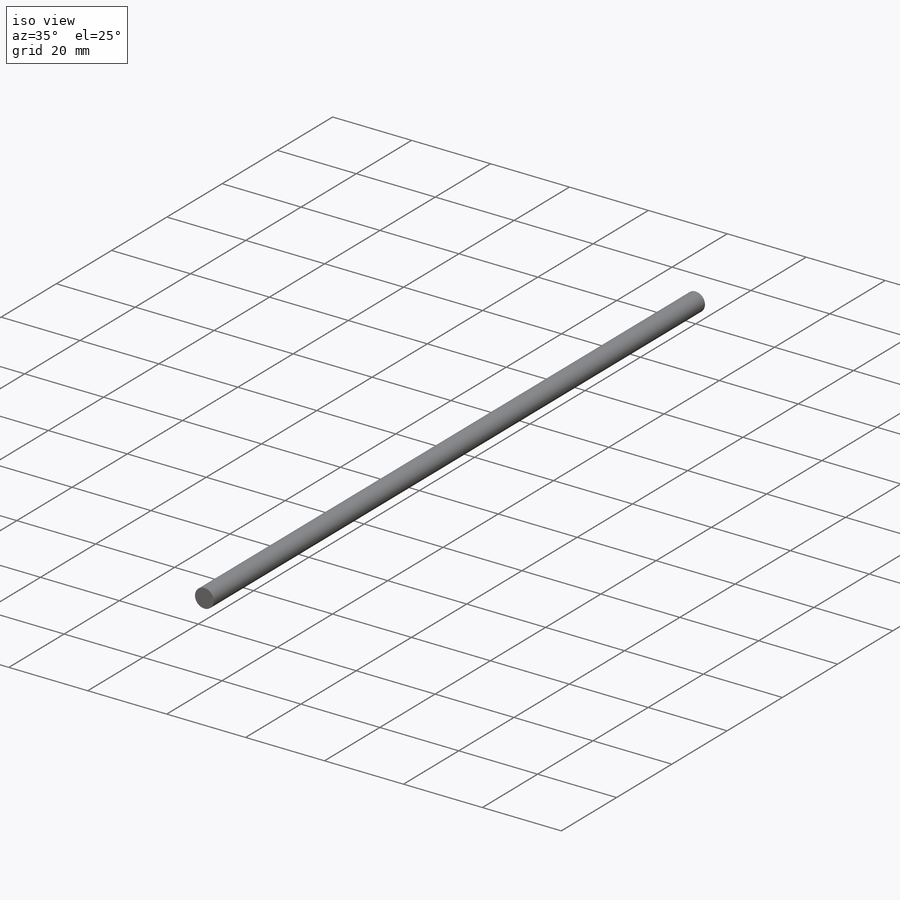
[diagram: iso view]
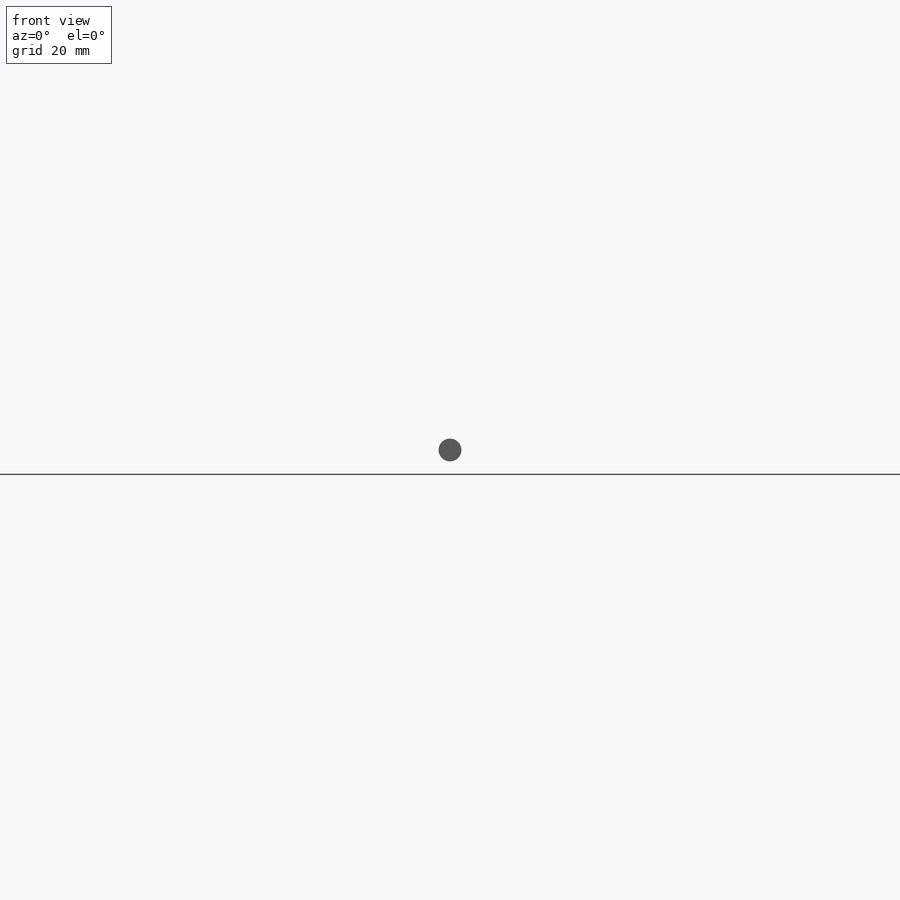
[diagram: front view]
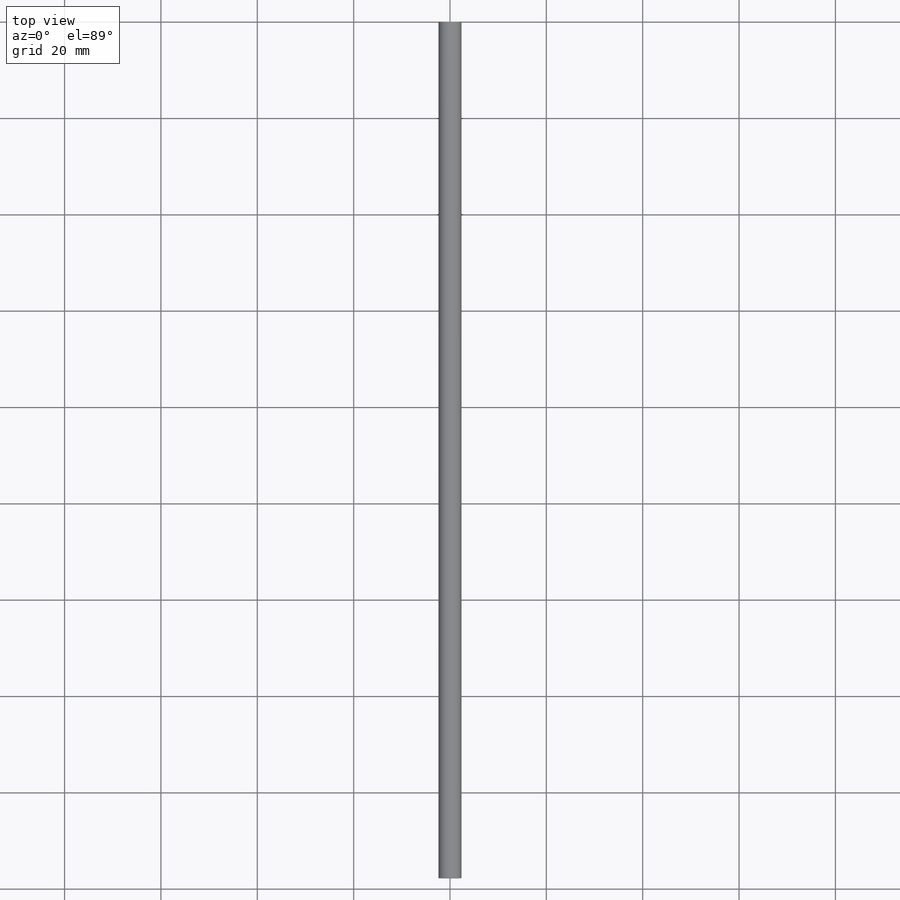
[diagram: top view]
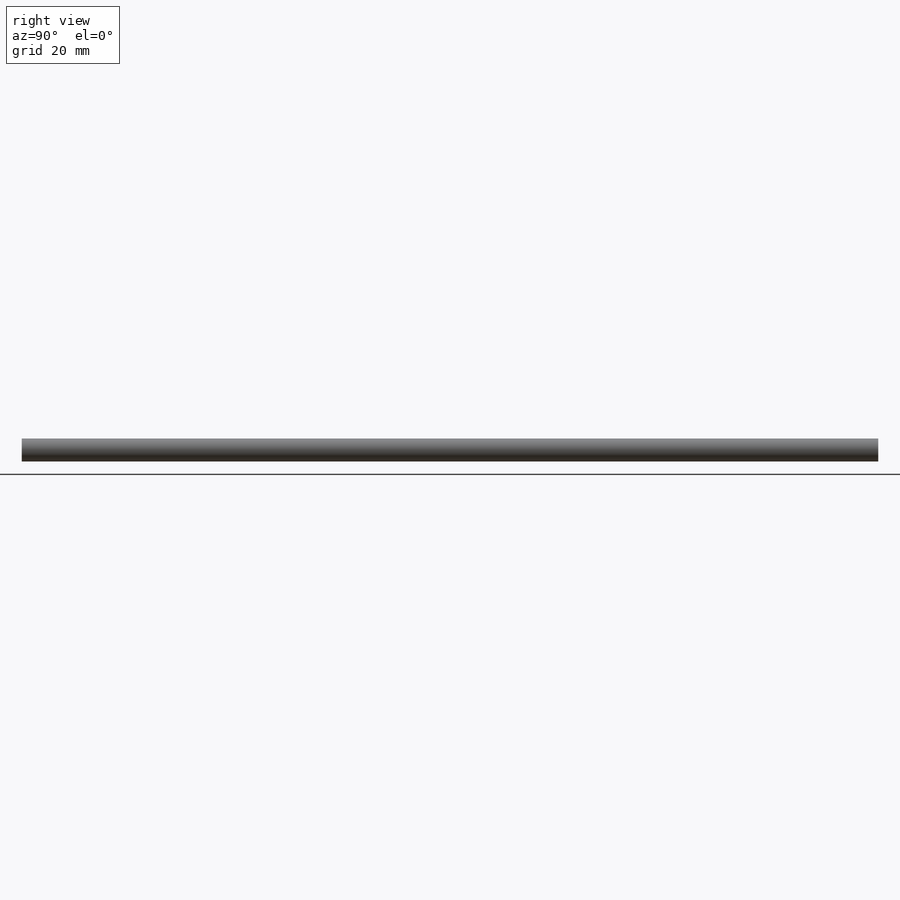
[diagram: right view]
SOLIDWORKS PART (.sldprt)
format: sldprt  version: not decoded by parser v0  size: 147,968 bytes
history: native  units: mm
features: sketch x3, cut_extrude x2, material x1, extrude x1 (+13 scaffold rows collapsed)
feature tree (20):
  scaffold x13  (default folders/planes/origin — collapsed)
  material  "201 Annealed Stainless Steel (SS)"
  sketch  "Sketch1"  dims[D1=4.7625mm]
  extrude  "Boss-Extrude1"  Depth=177.8mm
  sketch  "Sketch2"  dims[D1=3.175mm]
  cut_extrude  "Cut-Extrude1"  Depth=12.7mm
  sketch  "Sketch3"  dims[D1=3.175mm]
  cut_extrude  "Cut-Extrude2"  Depth=12.7mm
decode coverage: 6 of 6 modeling features carry decoded parameters
note: suppression state not decoded; provenance and decode notes live in map.json
